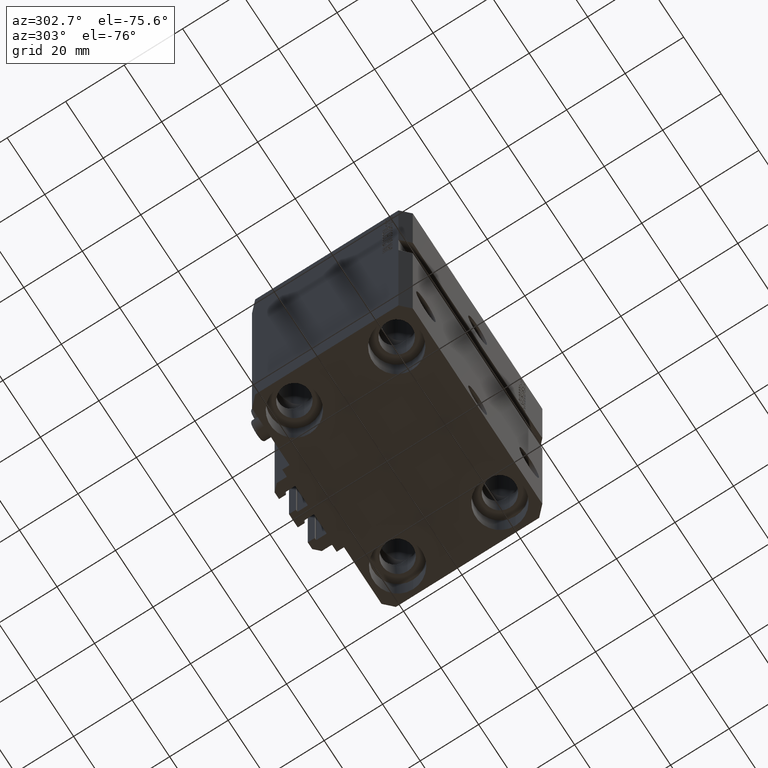
[diagram: clean part render]
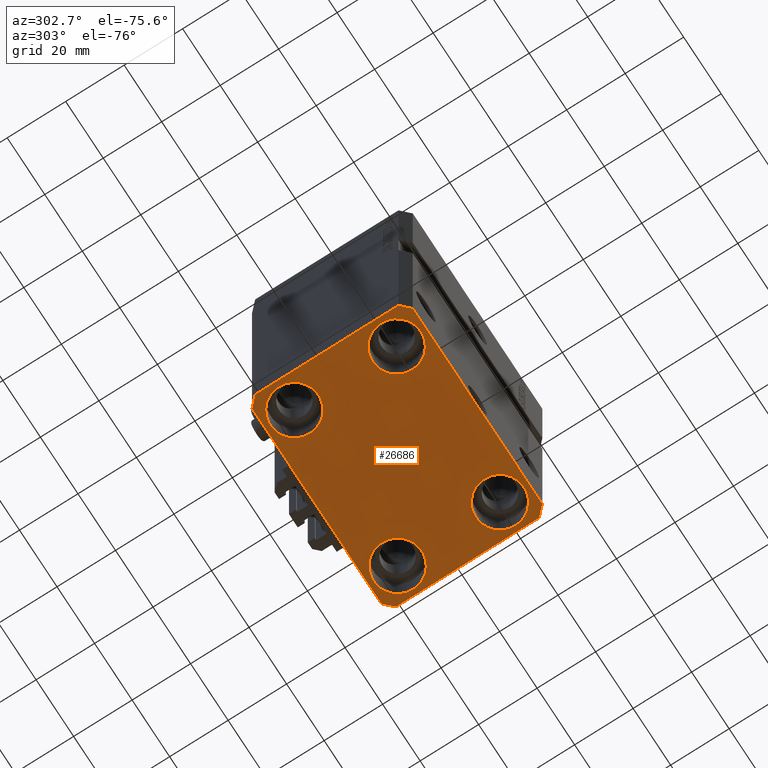
[diagram: same view with one face highlighted and labeled with its STEP entity id]
A machine part, auxiliary view. The second image highlights one B-rep face of the part: STEP entity #26686.
In plain terms, the highlighted planar face has unit normal (0, 0, 1).
Its self-contained STEP definition (entity closure, byte-faithful):
#267 = DIRECTION ( 'NONE',  ( 0.000000000000000000, 0.000000000000000000, 1.000000000000000000 ) ) ;
#617 = LINE ( 'NONE', #12549, #39609 ) ;
#717 = ORIENTED_EDGE ( 'NONE', *, *, #23769, .T. ) ;
#855 = ORIENTED_EDGE ( 'NONE', *, *, #5215, .F. ) ;
#1341 = ORIENTED_EDGE ( 'NONE', *, *, #32920, .T. ) ;
#1602 = EDGE_LOOP ( 'NONE', ( #717, #44026 ) ) ;
#2072 = CARTESIAN_POINT ( 'NONE',  ( 37.50000000000051870, 24.49999999999995381, -110.0000000000000000 ) ) ;
#2447 = LINE ( 'NONE', #7007, #36943 ) ;
#2661 = VECTOR ( 'NONE', #45406, 1000.000000000000000 ) ;
#2908 = CIRCLE ( 'NONE', #44227, 8.249999999999992895 ) ;
#3875 = CARTESIAN_POINT ( 'NONE',  ( -37.49999999999999289, -24.50000000000000000, -110.0000000000000000 ) ) ;
#4320 = FACE_BOUND ( 'NONE', #1602, .T. ) ;
#5170 = VECTOR ( 'NONE', #33138, 1000.000000000000000 ) ;
#5215 = EDGE_CURVE ( 'NONE', #42488, #47447, #617, .T. ) ;
#5620 = VERTEX_POINT ( 'NONE', #9263 ) ;
#5690 = AXIS2_PLACEMENT_3D ( 'NONE', #15206, #8289, #23065 ) ;
#5707 = VERTEX_POINT ( 'NONE', #11658 ) ;
#6096 = CIRCLE ( 'NONE', #27169, 8.250000000000000000 ) ;
#6153 = ORIENTED_EDGE ( 'NONE', *, *, #41435, .F. ) ;
#6543 = VECTOR ( 'NONE', #49659, 1000.000000000000000 ) ;
#6894 = CIRCLE ( 'NONE', #17457, 8.249999999999992895 ) ;
#7007 = CARTESIAN_POINT ( 'NONE',  ( 34.50000000000056843, 27.50000000000000000, -110.0000000000000000 ) ) ;
#7295 = LINE ( 'NONE', #42346, #2661 ) ;
#7442 = ORIENTED_EDGE ( 'NONE', *, *, #33972, .T. ) ;
#8289 = DIRECTION ( 'NONE',  ( -0.000000000000000000, -0.000000000000000000, 1.000000000000000000 ) ) ;
#8611 = CARTESIAN_POINT ( 'NONE',  ( -19.25000000000000355, 17.50000000000000000, -110.0000000000000000 ) ) ;
#8625 = FACE_OUTER_BOUND ( 'NONE', #48617, .T. ) ;
#8646 = CARTESIAN_POINT ( 'NONE',  ( 35.75000000000000711, -17.50000000000000000, -110.0000000000000000 ) ) ;
#9263 = CARTESIAN_POINT ( 'NONE',  ( -35.75000000000000711, 17.50000000000000000, -110.0000000000000000 ) ) ;
#9469 = DIRECTION ( 'NONE',  ( 1.000000000000000000, 0.000000000000000000, 0.000000000000000000 ) ) ;
#9669 = CARTESIAN_POINT ( 'NONE',  ( 37.49999999999999289, -24.50000000000000000, -110.0000000000000000 ) ) ;
#10462 = DIRECTION ( 'NONE',  ( 1.000000000000000000, 0.000000000000000000, 0.000000000000000000 ) ) ;
#10715 = LINE ( 'NONE', #2072, #20566 ) ;
#10723 = CARTESIAN_POINT ( 'NONE',  ( 27.50000000000000355, -17.50000000000000000, -110.0000000000000000 ) ) ;
#11413 = DIRECTION ( 'NONE',  ( 1.000000000000000000, 0.000000000000000000, 0.000000000000000000 ) ) ;
#11658 = CARTESIAN_POINT ( 'NONE',  ( 19.25000000000000000, -17.50000000000000000, -110.0000000000000000 ) ) ;
#12027 = ORIENTED_EDGE ( 'NONE', *, *, #24851, .F. ) ;
#12182 = ORIENTED_EDGE ( 'NONE', *, *, #47860, .F. ) ;
#12549 = CARTESIAN_POINT ( 'NONE',  ( 34.49999999999999289, -27.49999999999999645, -110.0000000000000000 ) ) ;
#13545 = DIRECTION ( 'NONE',  ( -0.000000000000000000, -0.000000000000000000, 1.000000000000000000 ) ) ;
#13854 = DIRECTION ( 'NONE',  ( -0.000000000000000000, -0.000000000000000000, 1.000000000000000000 ) ) ;
#14315 = VECTOR ( 'NONE', #28060, 1000.000000000000000 ) ;
#14486 = CARTESIAN_POINT ( 'NONE',  ( 37.49999999999999289, -24.50000000000000000, -110.0000000000000000 ) ) ;
#15118 = EDGE_CURVE ( 'NONE', #47447, #40096, #29966, .T. ) ;
#15206 = CARTESIAN_POINT ( 'NONE',  ( -27.50000000000000355, -17.50000000000000000, -110.0000000000000000 ) ) ;
#15655 = CARTESIAN_POINT ( 'NONE',  ( -37.49999999999999289, 24.50000000000000000, -110.0000000000000000 ) ) ;
#15840 = CARTESIAN_POINT ( 'NONE',  ( 34.49999999999999289, -27.49999999999999645, -110.0000000000000000 ) ) ;
#15879 = DIRECTION ( 'NONE',  ( 0.7071067811865474617, 0.7071067811865474617, 0.000000000000000000 ) ) ;
#16509 = CARTESIAN_POINT ( 'NONE',  ( 19.25000000000000000, 17.50000000000001066, -110.0000000000000000 ) ) ;
#17294 = VERTEX_POINT ( 'NONE', #8646 ) ;
#17457 = AXIS2_PLACEMENT_3D ( 'NONE', #35998, #47417, #48176 ) ;
#18343 = DIRECTION ( 'NONE',  ( -0.7071067811865356934, 0.7071067811865594521, 0.000000000000000000 ) ) ;
#18710 = EDGE_LOOP ( 'NONE', ( #20448, #1341 ) ) ;
#18802 = DIRECTION ( 'NONE',  ( 1.076236605503979380E-14, 1.000000000000000000, 0.000000000000000000 ) ) ;
#18846 = EDGE_CURVE ( 'NONE', #5620, #50137, #36476, .T. ) ;
#19289 = CARTESIAN_POINT ( 'NONE',  ( 27.50000000000000355, -17.50000000000000000, -110.0000000000000000 ) ) ;
#19814 = VERTEX_POINT ( 'NONE', #15655 ) ;
#20057 = EDGE_CURVE ( 'NONE', #5707, #17294, #30045, .T. ) ;
#20281 = CIRCLE ( 'NONE', #5690, 8.250000000000000000 ) ;
#20448 = ORIENTED_EDGE ( 'NONE', *, *, #20057, .T. ) ;
#20494 = EDGE_CURVE ( 'NONE', #37732, #39732, #32454, .T. ) ;
#20566 = VECTOR ( 'NONE', #18343, 1000.000000000000114 ) ;
#20954 = CARTESIAN_POINT ( 'NONE',  ( -27.50000000000000355, -17.50000000000000000, -110.0000000000000000 ) ) ;
#21139 = ORIENTED_EDGE ( 'NONE', *, *, #34408, .T. ) ;
#21506 = LINE ( 'NONE', #26070, #6543 ) ;
#21769 = DIRECTION ( 'NONE',  ( -1.000000000000000000, 0.000000000000000000, 0.000000000000000000 ) ) ;
#23065 = DIRECTION ( 'NONE',  ( 1.000000000000000000, 0.000000000000000000, 0.000000000000000000 ) ) ;
#23642 = CARTESIAN_POINT ( 'NONE',  ( 0.000000000000000000, 0.000000000000000000, -110.0000000000000000 ) ) ;
#23769 = EDGE_CURVE ( 'NONE', #39732, #37732, #20281, .T. ) ;
#24136 = FACE_BOUND ( 'NONE', #47812, .T. ) ;
#24256 = CARTESIAN_POINT ( 'NONE',  ( -34.49999999999999289, 27.50000000000000000, -110.0000000000000000 ) ) ;
#24434 = VERTEX_POINT ( 'NONE', #3875 ) ;
#24539 = CARTESIAN_POINT ( 'NONE',  ( -27.50000000000000355, 17.50000000000000000, -110.0000000000000000 ) ) ;
#24567 = CARTESIAN_POINT ( 'NONE',  ( -34.49999999999998579, -27.49999999999999645, -110.0000000000000000 ) ) ;
#24811 = VERTEX_POINT ( 'NONE', #28352 ) ;
#24851 = EDGE_CURVE ( 'NONE', #19814, #24434, #21506, .T. ) ;
#25180 = AXIS2_PLACEMENT_3D ( 'NONE', #20954, #13854, #25520 ) ;
#25520 = DIRECTION ( 'NONE',  ( 1.000000000000000000, 0.000000000000000000, 0.000000000000000000 ) ) ;
#26070 = CARTESIAN_POINT ( 'NONE',  ( -37.49999999999999289, 24.50000000000000000, -110.0000000000000000 ) ) ;
#26686 = ADVANCED_FACE ( 'NONE', ( #4320, #27445, #24136, #39361, #8625 ), #35801, .F. ) ;
#26804 = EDGE_LOOP ( 'NONE', ( #49600, #7442 ) ) ;
#27169 = AXIS2_PLACEMENT_3D ( 'NONE', #27211, #31507, #38384 ) ;
#27211 = CARTESIAN_POINT ( 'NONE',  ( -27.50000000000000355, 17.50000000000000000, -110.0000000000000000 ) ) ;
#27445 = FACE_BOUND ( 'NONE', #18710, .T. ) ;
#27611 = AXIS2_PLACEMENT_3D ( 'NONE', #10723, #45253, #10462 ) ;
#28060 = DIRECTION ( 'NONE',  ( -0.7071067811865471286, -0.7071067811865479058, 0.000000000000000000 ) ) ;
#28352 = CARTESIAN_POINT ( 'NONE',  ( 35.74999999999999289, 17.50000000000001066, -110.0000000000000000 ) ) ;
#29966 = LINE ( 'NONE', #14486, #33084 ) ;
#30045 = CIRCLE ( 'NONE', #27611, 8.250000000000000000 ) ;
#31497 = EDGE_CURVE ( 'NONE', #40096, #49175, #10715, .T. ) ;
#31507 = DIRECTION ( 'NONE',  ( -0.000000000000000000, -0.000000000000000000, 1.000000000000000000 ) ) ;
#31553 = ORIENTED_EDGE ( 'NONE', *, *, #15118, .F. ) ;
#31730 = AXIS2_PLACEMENT_3D ( 'NONE', #23642, #267, #42685 ) ;
#32409 = DIRECTION ( 'NONE',  ( -0.000000000000000000, -0.000000000000000000, 1.000000000000000000 ) ) ;
#32454 = CIRCLE ( 'NONE', #25180, 8.250000000000000000 ) ;
#32920 = EDGE_CURVE ( 'NONE', #17294, #5707, #48207, .T. ) ;
#33084 = VECTOR ( 'NONE', #18802, 1000.000000000000000 ) ;
#33138 = DIRECTION ( 'NONE',  ( 1.000000000000000000, 0.000000000000000000, 0.000000000000000000 ) ) ;
#33668 = CARTESIAN_POINT ( 'NONE',  ( -19.25000000000000355, -17.50000000000000000, -110.0000000000000000 ) ) ;
#33829 = VERTEX_POINT ( 'NONE', #16509 ) ;
#33972 = EDGE_CURVE ( 'NONE', #50137, #5620, #6096, .T. ) ;
#34408 = EDGE_CURVE ( 'NONE', #33829, #24811, #6894, .T. ) ;
#35430 = LINE ( 'NONE', #24256, #14315 ) ;
#35801 = PLANE ( 'NONE',  #31730 ) ;
#35998 = CARTESIAN_POINT ( 'NONE',  ( 27.49999999999999645, 17.50000000000001066, -110.0000000000000000 ) ) ;
#36377 = CARTESIAN_POINT ( 'NONE',  ( 27.49999999999999645, 17.50000000000001066, -110.0000000000000000 ) ) ;
#36476 = CIRCLE ( 'NONE', #43758, 8.250000000000000000 ) ;
#36943 = VECTOR ( 'NONE', #21769, 1000.000000000000000 ) ;
#37199 = CARTESIAN_POINT ( 'NONE',  ( -34.49999999999998579, -27.49999999999999645, -110.0000000000000000 ) ) ;
#37732 = VERTEX_POINT ( 'NONE', #33668 ) ;
#38384 = DIRECTION ( 'NONE',  ( 1.000000000000000000, 0.000000000000000000, 0.000000000000000000 ) ) ;
#39165 = ORIENTED_EDGE ( 'NONE', *, *, #47035, .T. ) ;
#39361 = FACE_BOUND ( 'NONE', #26804, .T. ) ;
#39609 = VECTOR ( 'NONE', #15879, 1000.000000000000114 ) ;
#39732 = VERTEX_POINT ( 'NONE', #46133 ) ;
#39834 = CARTESIAN_POINT ( 'NONE',  ( 34.50000000000056843, 27.50000000000000000, -110.0000000000000000 ) ) ;
#40096 = VERTEX_POINT ( 'NONE', #47236 ) ;
#40503 = LINE ( 'NONE', #37199, #5170 ) ;
#41172 = ORIENTED_EDGE ( 'NONE', *, *, #49770, .F. ) ;
#41435 = EDGE_CURVE ( 'NONE', #24434, #42843, #7295, .T. ) ;
#42254 = ORIENTED_EDGE ( 'NONE', *, *, #43187, .F. ) ;
#42346 = CARTESIAN_POINT ( 'NONE',  ( -37.49999999999999289, -24.50000000000000000, -110.0000000000000000 ) ) ;
#42488 = VERTEX_POINT ( 'NONE', #15840 ) ;
#42685 = DIRECTION ( 'NONE',  ( 1.000000000000000000, 0.000000000000000000, -0.000000000000000000 ) ) ;
#42843 = VERTEX_POINT ( 'NONE', #24567 ) ;
#43187 = EDGE_CURVE ( 'NONE', #42843, #42488, #40503, .T. ) ;
#43352 = AXIS2_PLACEMENT_3D ( 'NONE', #19289, #46185, #11413 ) ;
#43758 = AXIS2_PLACEMENT_3D ( 'NONE', #24539, #32409, #47889 ) ;
#44026 = ORIENTED_EDGE ( 'NONE', *, *, #20494, .T. ) ;
#44163 = VERTEX_POINT ( 'NONE', #47179 ) ;
#44227 = AXIS2_PLACEMENT_3D ( 'NONE', #36377, #13545, #9469 ) ;
#45253 = DIRECTION ( 'NONE',  ( -0.000000000000000000, -0.000000000000000000, 1.000000000000000000 ) ) ;
#45406 = DIRECTION ( 'NONE',  ( 0.7071067811865483499, -0.7071067811865466846, 0.000000000000000000 ) ) ;
#46133 = CARTESIAN_POINT ( 'NONE',  ( -35.75000000000000711, -17.50000000000000000, -110.0000000000000000 ) ) ;
#46185 = DIRECTION ( 'NONE',  ( -0.000000000000000000, -0.000000000000000000, 1.000000000000000000 ) ) ;
#47035 = EDGE_CURVE ( 'NONE', #24811, #33829, #2908, .T. ) ;
#47179 = CARTESIAN_POINT ( 'NONE',  ( -34.49999999999999289, 27.50000000000000000, -110.0000000000000000 ) ) ;
#47236 = CARTESIAN_POINT ( 'NONE',  ( 37.50000000000051870, 24.49999999999995381, -110.0000000000000000 ) ) ;
#47417 = DIRECTION ( 'NONE',  ( -0.000000000000000000, -0.000000000000000000, 1.000000000000000000 ) ) ;
#47447 = VERTEX_POINT ( 'NONE', #9669 ) ;
#47812 = EDGE_LOOP ( 'NONE', ( #21139, #39165 ) ) ;
#47860 = EDGE_CURVE ( 'NONE', #44163, #19814, #35430, .T. ) ;
#47889 = DIRECTION ( 'NONE',  ( 1.000000000000000000, 0.000000000000000000, 0.000000000000000000 ) ) ;
#48176 = DIRECTION ( 'NONE',  ( 1.000000000000000000, 0.000000000000000000, 0.000000000000000000 ) ) ;
#48207 = CIRCLE ( 'NONE', #43352, 8.250000000000000000 ) ;
#48617 = EDGE_LOOP ( 'NONE', ( #41172, #49131, #31553, #855, #42254, #6153, #12027, #12182 ) ) ;
#49131 = ORIENTED_EDGE ( 'NONE', *, *, #31497, .F. ) ;
#49175 = VERTEX_POINT ( 'NONE', #39834 ) ;
#49600 = ORIENTED_EDGE ( 'NONE', *, *, #18846, .T. ) ;
#49659 = DIRECTION ( 'NONE',  ( 0.000000000000000000, -1.000000000000000000, 0.000000000000000000 ) ) ;
#49770 = EDGE_CURVE ( 'NONE', #49175, #44163, #2447, .T. ) ;
#50137 = VERTEX_POINT ( 'NONE', #8611 ) ;